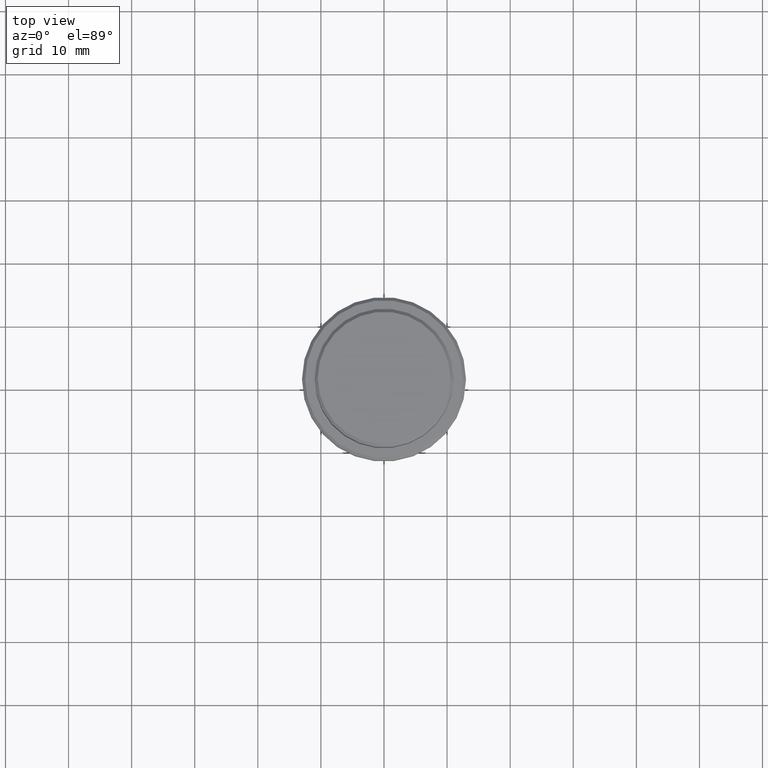
[diagram: clean part render]
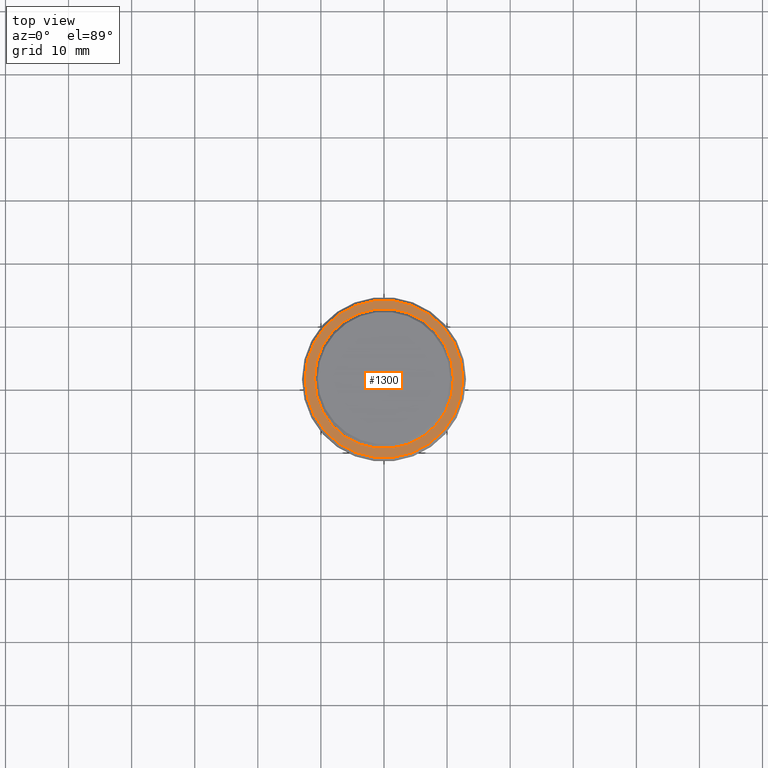
[diagram: same view with one face highlighted and labeled with its STEP entity id]
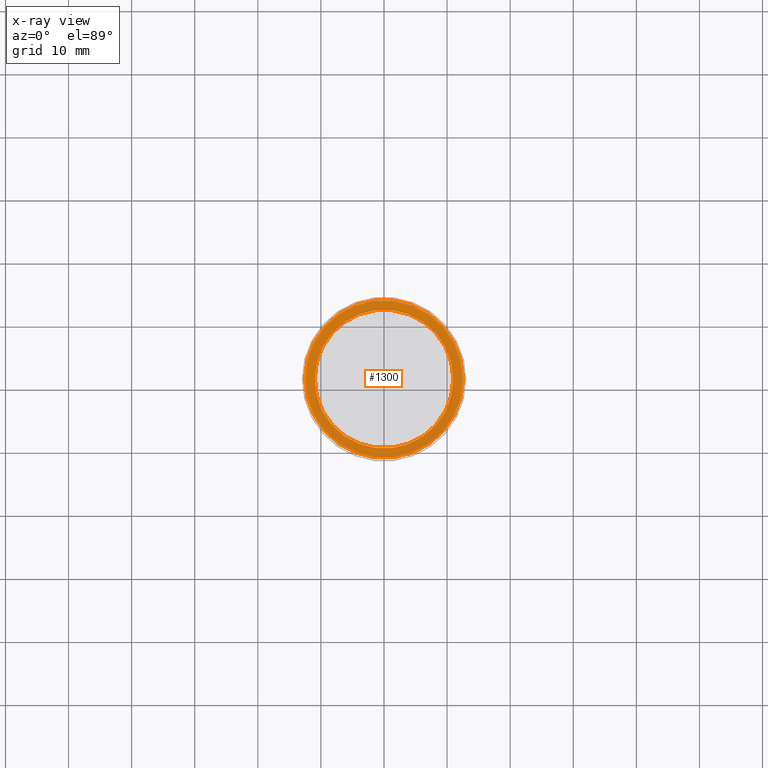
[diagram: x-ray of the same camera — body ghosted, the highlighted face saturated]
A machine part, top view. The second image highlights one B-rep face of the part: STEP entity #1300.
The next image is the same camera in x-ray: the body ghosted, the highlighted face saturated — about 0% of this face is hidden behind the body in this view.
In plain terms, the highlighted planar face has unit normal (0, -0, 1).
Its self-contained STEP definition (entity closure, byte-faithful):
#37 = AXIS2_PLACEMENT_3D ( 'NONE', #1223, #923, #537 ) ;
#54 = ORIENTED_EDGE ( 'NONE', *, *, #306, .T. ) ;
#87 = CIRCLE ( 'NONE', #1127, 12.49999999999999645 ) ;
#97 = EDGE_LOOP ( 'NONE', ( #1108, #54 ) ) ;
#189 = CARTESIAN_POINT ( 'NONE',  ( 12.49999999999999645, 1.561424668912875111E-15, -10.00000000000000000 ) ) ;
#243 = CARTESIAN_POINT ( 'NONE',  ( -12.49999999999999645, 0.000000000000000000, -10.00000000000000000 ) ) ;
#290 = DIRECTION ( 'NONE',  ( 1.000000000000000000, 0.000000000000000000, 0.000000000000000000 ) ) ;
#306 = EDGE_CURVE ( 'NONE', #584, #839, #1123, .T. ) ;
#320 = AXIS2_PLACEMENT_3D ( 'NONE', #735, #624, #973 ) ;
#339 = DIRECTION ( 'NONE',  ( -0.000000000000000000, -0.000000000000000000, 1.000000000000000000 ) ) ;
#381 = DIRECTION ( 'NONE',  ( 1.000000000000000000, 0.000000000000000000, 0.000000000000000000 ) ) ;
#432 = AXIS2_PLACEMENT_3D ( 'NONE', #829, #1349, #381 ) ;
#464 = CARTESIAN_POINT ( 'NONE',  ( 0.000000000000000000, 0.000000000000000000, -10.00000000000000000 ) ) ;
#532 = EDGE_LOOP ( 'NONE', ( #1163, #1285 ) ) ;
#537 = DIRECTION ( 'NONE',  ( 1.000000000000000000, 0.000000000000000000, 0.000000000000000000 ) ) ;
#584 = VERTEX_POINT ( 'NONE', #957 ) ;
#624 = DIRECTION ( 'NONE',  ( 0.000000000000000000, 0.000000000000000000, -1.000000000000000000 ) ) ;
#716 = EDGE_CURVE ( 'NONE', #824, #721, #87, .T. ) ;
#721 = VERTEX_POINT ( 'NONE', #243 ) ;
#735 = CARTESIAN_POINT ( 'NONE',  ( 0.000000000000000000, 0.000000000000000000, -10.00000000000000000 ) ) ;
#747 = CIRCLE ( 'NONE', #1310, 12.49999999999999645 ) ;
#777 = CIRCLE ( 'NONE', #432, 10.99999999999996625 ) ;
#791 = EDGE_CURVE ( 'NONE', #721, #824, #747, .T. ) ;
#823 = CARTESIAN_POINT ( 'NONE',  ( 0.000000000000000000, 0.000000000000000000, -10.00000000000000000 ) ) ;
#824 = VERTEX_POINT ( 'NONE', #189 ) ;
#829 = CARTESIAN_POINT ( 'NONE',  ( 0.000000000000000000, 0.000000000000000000, -10.00000000000000000 ) ) ;
#839 = VERTEX_POINT ( 'NONE', #1061 ) ;
#923 = DIRECTION ( 'NONE',  ( 0.000000000000000000, -0.000000000000000000, 1.000000000000000000 ) ) ;
#957 = CARTESIAN_POINT ( 'NONE',  ( -10.99999999999996625, 1.347111479062084460E-15, -10.00000000000000000 ) ) ;
#973 = DIRECTION ( 'NONE',  ( 1.000000000000000000, 0.000000000000000000, 0.000000000000000000 ) ) ;
#1049 = DIRECTION ( 'NONE',  ( -0.000000000000000000, -0.000000000000000000, 1.000000000000000000 ) ) ;
#1061 = CARTESIAN_POINT ( 'NONE',  ( 10.99999999999996625, 0.000000000000000000, -10.00000000000000000 ) ) ;
#1108 = ORIENTED_EDGE ( 'NONE', *, *, #1207, .T. ) ;
#1123 = CIRCLE ( 'NONE', #320, 10.99999999999996625 ) ;
#1124 = DIRECTION ( 'NONE',  ( 1.000000000000000000, 0.000000000000000000, 0.000000000000000000 ) ) ;
#1127 = AXIS2_PLACEMENT_3D ( 'NONE', #464, #339, #1124 ) ;
#1137 = PLANE ( 'NONE',  #37 ) ;
#1163 = ORIENTED_EDGE ( 'NONE', *, *, #791, .T. ) ;
#1192 = FACE_BOUND ( 'NONE', #97, .T. ) ;
#1207 = EDGE_CURVE ( 'NONE', #839, #584, #777, .T. ) ;
#1223 = CARTESIAN_POINT ( 'NONE',  ( 0.000000000000000000, 10.49999999999996625, -10.00000000000000000 ) ) ;
#1252 = FACE_OUTER_BOUND ( 'NONE', #532, .T. ) ;
#1285 = ORIENTED_EDGE ( 'NONE', *, *, #716, .T. ) ;
#1300 = ADVANCED_FACE ( 'NONE', ( #1252, #1192 ), #1137, .T. ) ;
#1310 = AXIS2_PLACEMENT_3D ( 'NONE', #823, #1049, #290 ) ;
#1349 = DIRECTION ( 'NONE',  ( 0.000000000000000000, 0.000000000000000000, -1.000000000000000000 ) ) ;